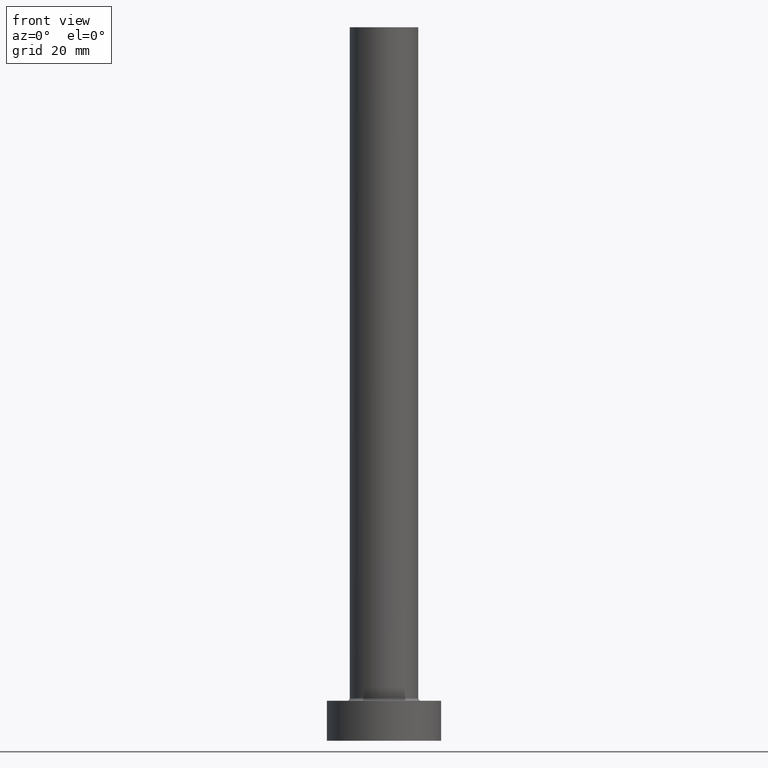
[diagram: clean part render]
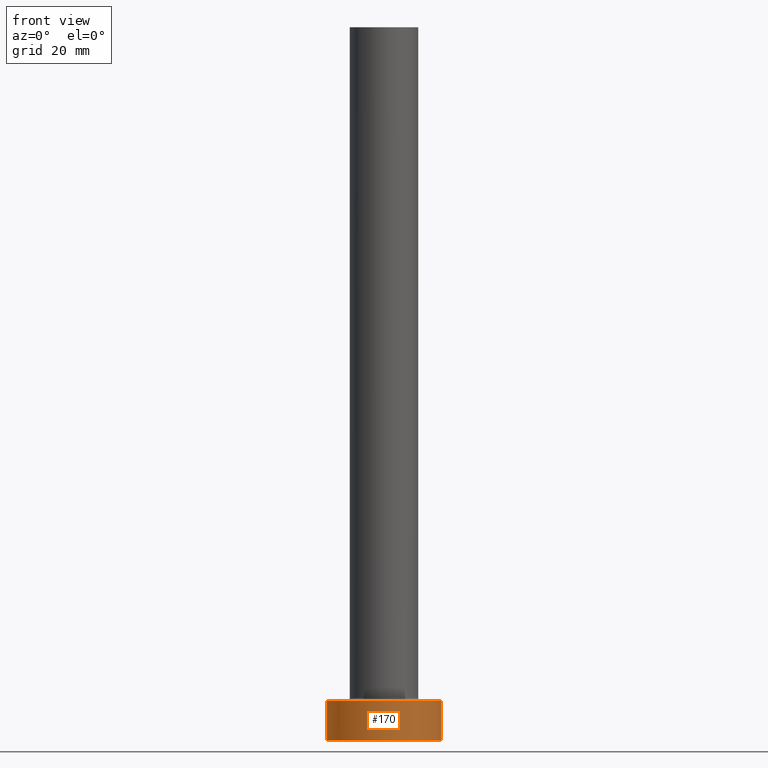
[diagram: same view with one face highlighted and labeled with its STEP entity id]
A machine part, front view. The second image highlights one B-rep face of the part: STEP entity #170.
In plain terms, the highlighted cylindrical surface (partial cylindrical patch) has radius 10 mm, axis along (-0, -0, -1).
Its self-contained STEP definition (entity closure, byte-faithful):
#24 = DIRECTION ( 'NONE',  ( 1.000000000000000000, 0.000000000000000000, 0.000000000000000000 ) ) ;
#29 = DIRECTION ( 'NONE',  ( 0.000000000000000000, 0.000000000000000000, 1.000000000000000000 ) ) ;
#46 = EDGE_LOOP ( 'NONE', ( #125, #381, #368, #298 ) ) ;
#51 = VERTEX_POINT ( 'NONE', #236 ) ;
#67 = DIRECTION ( 'NONE',  ( -1.000000000000000000, 0.000000000000000000, 0.000000000000000000 ) ) ;
#84 = CARTESIAN_POINT ( 'NONE',  ( -10.00000000000000000, 0.000000000000000000, 7.000000000000000000 ) ) ;
#100 = FACE_OUTER_BOUND ( 'NONE', #46, .T. ) ;
#125 = ORIENTED_EDGE ( 'NONE', *, *, #136, .F. ) ;
#133 = DIRECTION ( 'NONE',  ( -0.000000000000000000, -0.000000000000000000, -1.000000000000000000 ) ) ;
#136 = EDGE_CURVE ( 'NONE', #51, #233, #319, .T. ) ;
#153 = CARTESIAN_POINT ( 'NONE',  ( 10.00000000000000000, 1.224646799147353256E-15, 7.000000000000000000 ) ) ;
#154 = AXIS2_PLACEMENT_3D ( 'NONE', #187, #282, #67 ) ;
#170 = ADVANCED_FACE ( 'NONE', ( #100 ), #249, .T. ) ;
#187 = CARTESIAN_POINT ( 'NONE',  ( 0.000000000000000000, 0.000000000000000000, 7.000000000000000000 ) ) ;
#201 = EDGE_CURVE ( 'NONE', #274, #51, #403, .T. ) ;
#211 = CARTESIAN_POINT ( 'NONE',  ( -10.00000000000000000, 0.000000000000000000, 0.000000000000000000 ) ) ;
#215 = DIRECTION ( 'NONE',  ( 1.000000000000000000, 0.000000000000000000, 0.000000000000000000 ) ) ;
#233 = VERTEX_POINT ( 'NONE', #385 ) ;
#236 = CARTESIAN_POINT ( 'NONE',  ( 10.00000000000000000, 1.224646799147353256E-15, 7.000000000000000000 ) ) ;
#244 = VERTEX_POINT ( 'NONE', #211 ) ;
#249 = CYLINDRICAL_SURFACE ( 'NONE', #154, 10.00000000000000000 ) ;
#274 = VERTEX_POINT ( 'NONE', #84 ) ;
#277 = CARTESIAN_POINT ( 'NONE',  ( -10.00000000000000000, 0.000000000000000000, 7.000000000000000000 ) ) ;
#282 = DIRECTION ( 'NONE',  ( -0.000000000000000000, -0.000000000000000000, -1.000000000000000000 ) ) ;
#288 = CARTESIAN_POINT ( 'NONE',  ( 0.000000000000000000, 0.000000000000000000, 7.000000000000000000 ) ) ;
#296 = CIRCLE ( 'NONE', #378, 10.00000000000000000 ) ;
#298 = ORIENTED_EDGE ( 'NONE', *, *, #379, .T. ) ;
#305 = CARTESIAN_POINT ( 'NONE',  ( 0.000000000000000000, 0.000000000000000000, 0.000000000000000000 ) ) ;
#307 = LINE ( 'NONE', #277, #391 ) ;
#319 = LINE ( 'NONE', #153, #377 ) ;
#330 = EDGE_CURVE ( 'NONE', #274, #244, #307, .T. ) ;
#350 = AXIS2_PLACEMENT_3D ( 'NONE', #288, #387, #215 ) ;
#368 = ORIENTED_EDGE ( 'NONE', *, *, #330, .T. ) ;
#377 = VECTOR ( 'NONE', #425, 1000.000000000000000 ) ;
#378 = AXIS2_PLACEMENT_3D ( 'NONE', #305, #29, #24 ) ;
#379 = EDGE_CURVE ( 'NONE', #244, #233, #296, .T. ) ;
#381 = ORIENTED_EDGE ( 'NONE', *, *, #201, .F. ) ;
#385 = CARTESIAN_POINT ( 'NONE',  ( 10.00000000000000000, 1.224646799147353256E-15, 0.000000000000000000 ) ) ;
#387 = DIRECTION ( 'NONE',  ( 0.000000000000000000, 0.000000000000000000, 1.000000000000000000 ) ) ;
#391 = VECTOR ( 'NONE', #133, 1000.000000000000000 ) ;
#403 = CIRCLE ( 'NONE', #350, 10.00000000000000000 ) ;
#425 = DIRECTION ( 'NONE',  ( -0.000000000000000000, -0.000000000000000000, -1.000000000000000000 ) ) ;